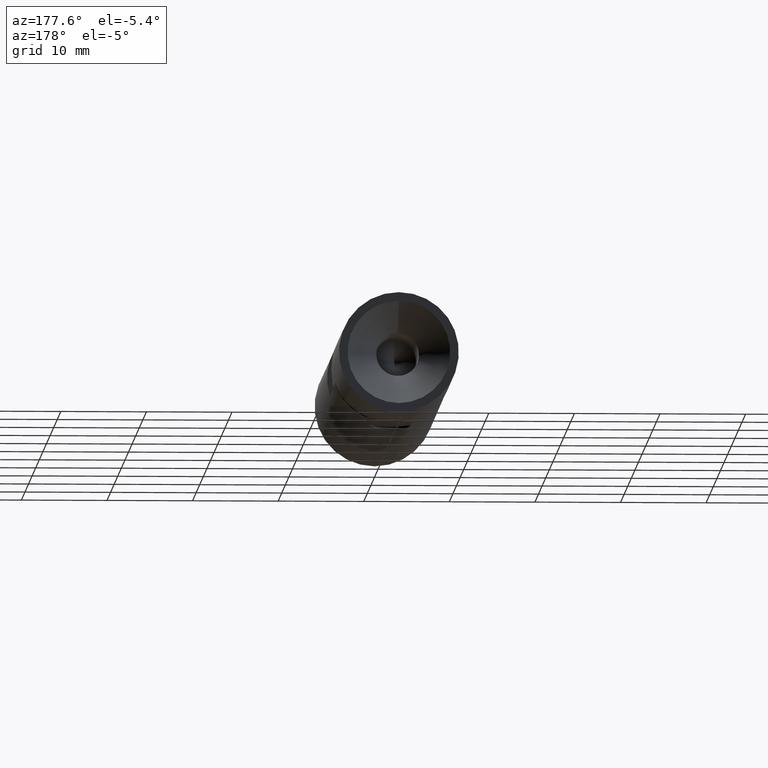
[diagram: clean part render]
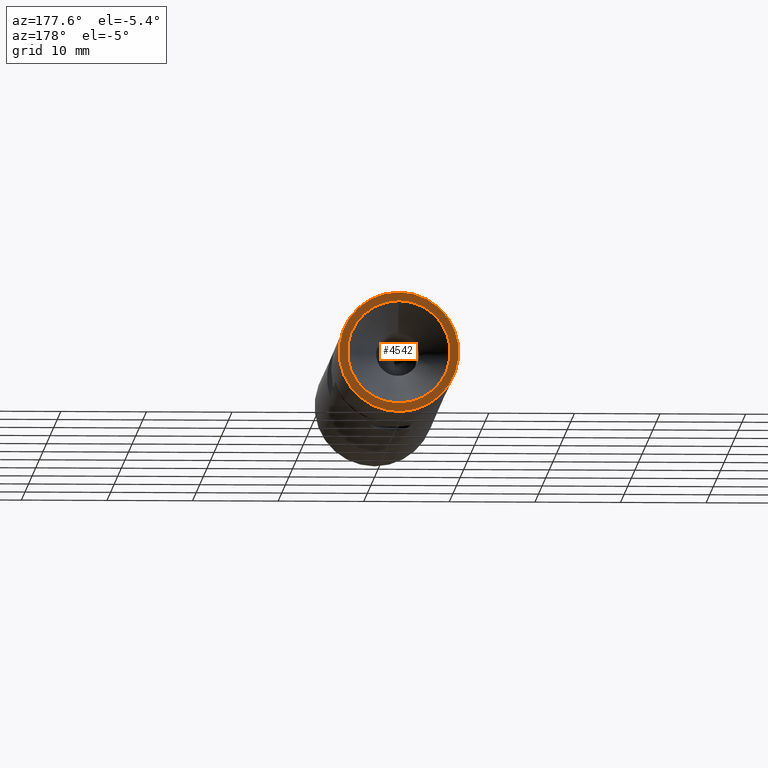
[diagram: same view with one face highlighted and labeled with its STEP entity id]
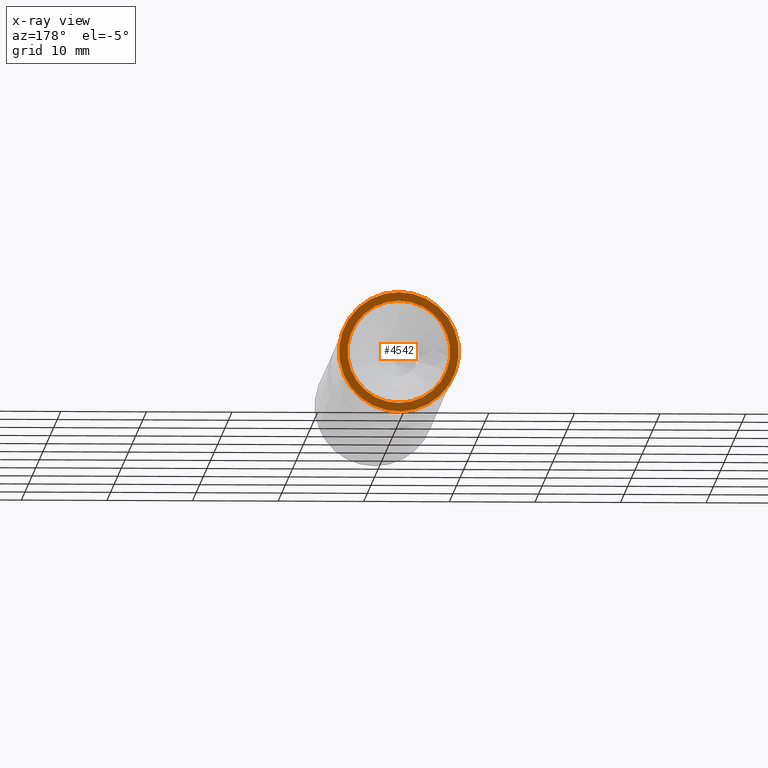
[diagram: x-ray of the same camera — body ghosted, the highlighted face saturated]
A machine part, auxiliary view. The second image highlights one B-rep face of the part: STEP entity #4542.
The next image is the same camera in x-ray: the body ghosted, the highlighted face saturated — about 0% of this face is hidden behind the body in this view.
In plain terms, the highlighted planar face has unit normal (0, 1, 0).
Its self-contained STEP definition (entity closure, byte-faithful):
#422 = PLANE ( 'NONE',  #5292 ) ;
#2601 = CARTESIAN_POINT ( 'NONE',  ( 0.000000000000000000, 28.50000000000000000, 0.000000000000000000 ) ) ;
#2928 = ORIENTED_EDGE ( 'NONE', *, *, #16968, .F. ) ;
#3918 = EDGE_LOOP ( 'NONE', ( #18005 ) ) ;
#4542 = ADVANCED_FACE ( 'NONE', ( #14264, #8340 ), #422, .T. ) ;
#5292 = AXIS2_PLACEMENT_3D ( 'NONE', #11961, #10376, #9121 ) ;
#6160 = EDGE_LOOP ( 'NONE', ( #2928 ) ) ;
#6465 = AXIS2_PLACEMENT_3D ( 'NONE', #2601, #14309, #15725 ) ;
#6722 = CIRCLE ( 'NONE', #16519, 7.000000000000000888 ) ;
#7085 = CIRCLE ( 'NONE', #6465, 6.000000000000000000 ) ;
#7092 = DIRECTION ( 'NONE',  ( 0.000000000000000000, 0.000000000000000000, 1.000000000000000000 ) ) ;
#7352 = DIRECTION ( 'NONE',  ( 0.000000000000000000, 1.000000000000000000, 0.000000000000000000 ) ) ;
#8340 = FACE_OUTER_BOUND ( 'NONE', #3918, .T. ) ;
#8630 = VERTEX_POINT ( 'NONE', #18712 ) ;
#9121 = DIRECTION ( 'NONE',  ( 0.000000000000000000, -0.000000000000000000, 1.000000000000000000 ) ) ;
#10376 = DIRECTION ( 'NONE',  ( 0.000000000000000000, 1.000000000000000000, 0.000000000000000000 ) ) ;
#10556 = EDGE_CURVE ( 'NONE', #11341, #11341, #6722, .T. ) ;
#11341 = VERTEX_POINT ( 'NONE', #12703 ) ;
#11961 = CARTESIAN_POINT ( 'NONE',  ( 0.000000000000000000, 28.50000000000000000, 0.000000000000000000 ) ) ;
#12703 = CARTESIAN_POINT ( 'NONE',  ( 0.000000000000000000, 28.50000000000000000, 7.000000000000000888 ) ) ;
#14264 = FACE_BOUND ( 'NONE', #6160, .T. ) ;
#14309 = DIRECTION ( 'NONE',  ( -0.000000000000000000, 1.000000000000000000, -0.000000000000000000 ) ) ;
#15725 = DIRECTION ( 'NONE',  ( 0.000000000000000000, 0.000000000000000000, 1.000000000000000000 ) ) ;
#16519 = AXIS2_PLACEMENT_3D ( 'NONE', #18816, #7352, #7092 ) ;
#16968 = EDGE_CURVE ( 'NONE', #8630, #8630, #7085, .T. ) ;
#18005 = ORIENTED_EDGE ( 'NONE', *, *, #10556, .T. ) ;
#18712 = CARTESIAN_POINT ( 'NONE',  ( 0.000000000000000000, 28.50000000000000000, 6.000000000000000000 ) ) ;
#18816 = CARTESIAN_POINT ( 'NONE',  ( 0.000000000000000000, 28.50000000000000000, 0.000000000000000000 ) ) ;